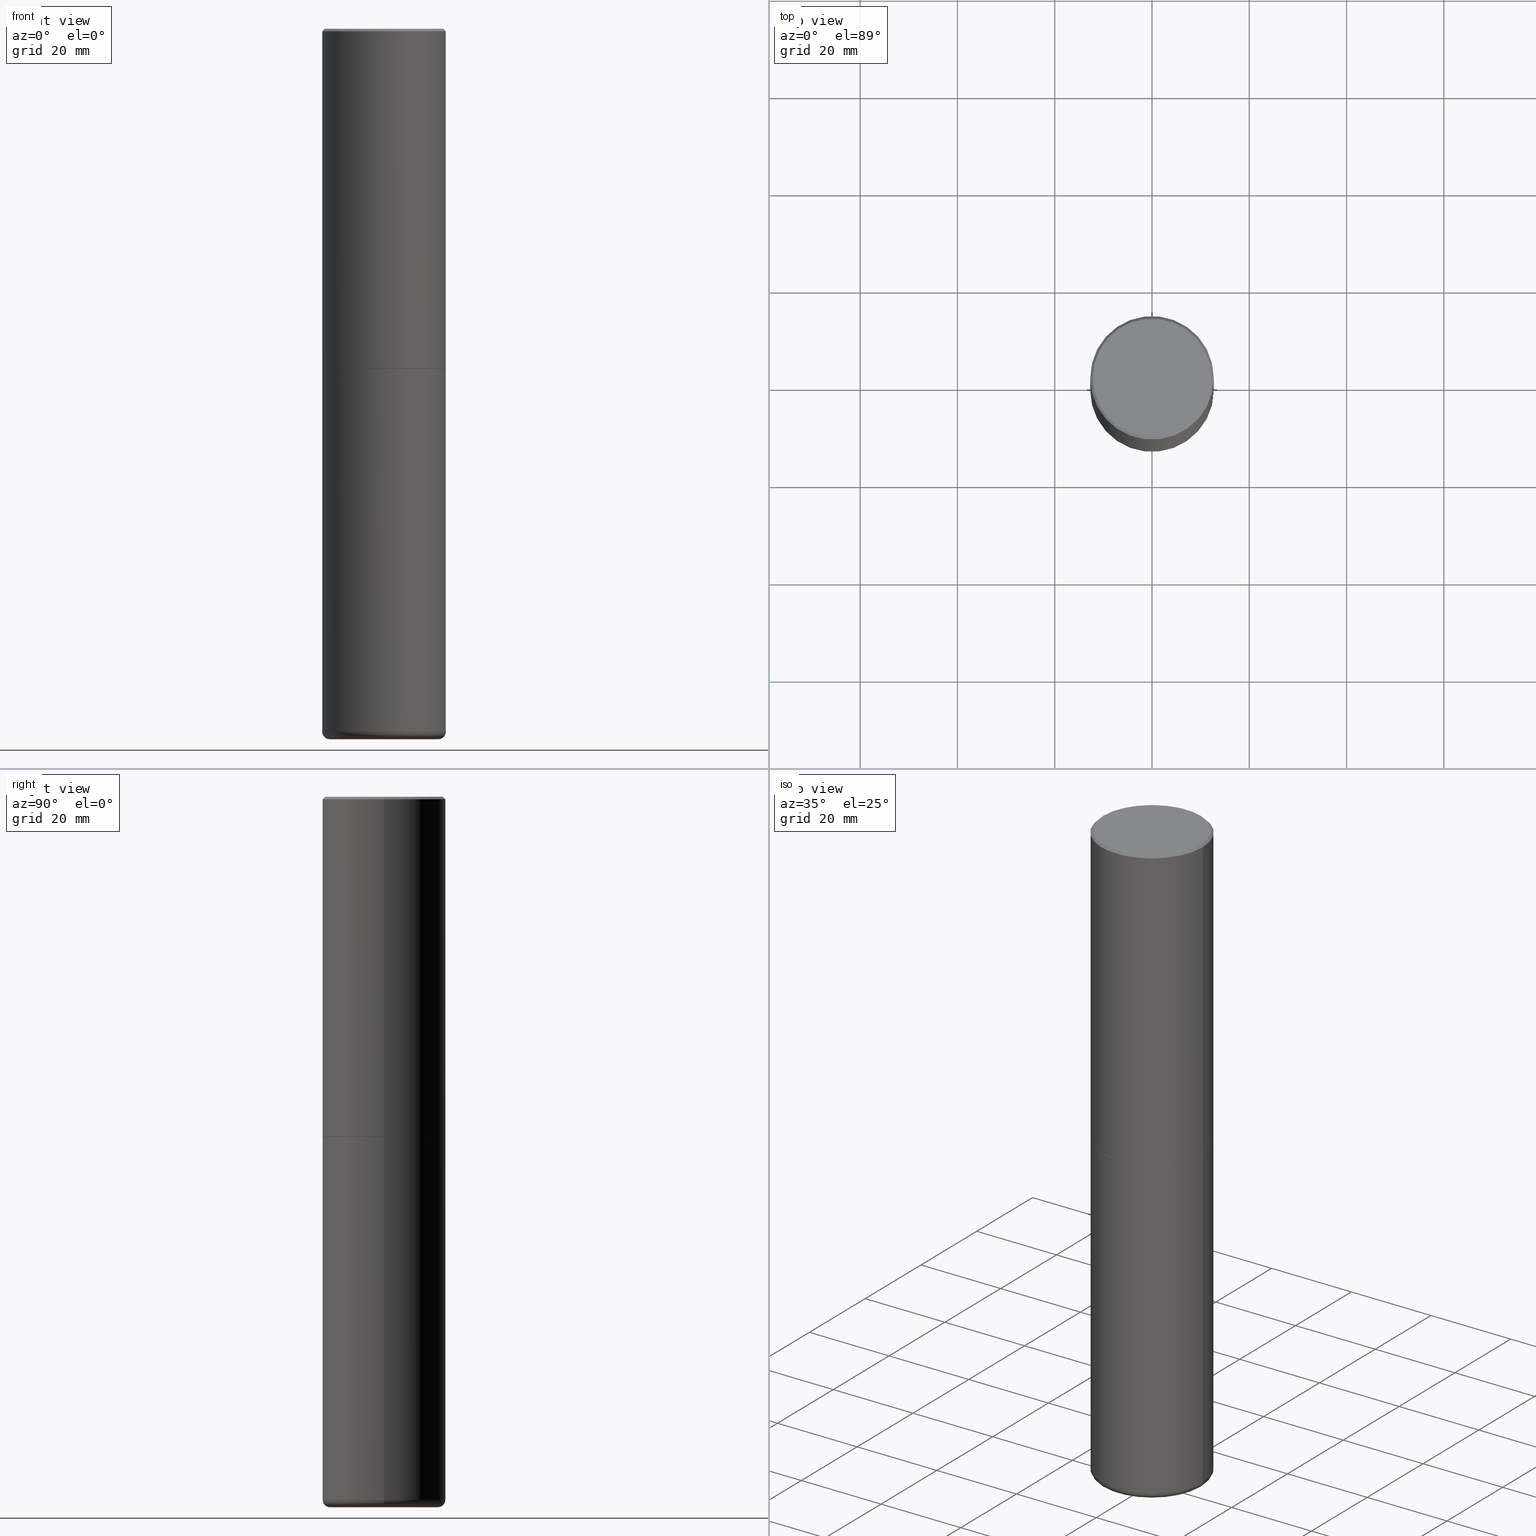
[diagram: canonical four-view strip — front | top / right | iso, engineering-drawing reading convention]
A machine part, canonical four-view strip (front | top / right | iso — engineering-drawing reading convention). The complete STEP part file that produces these views, byte-faithful:
ISO-10303-21;
HEADER;
FILE_DESCRIPTION (( 'STEP AP203' ),
    '1' );
FILE_NAME ('77487.STEP',
    '2024-05-02T19:49:01',
    ( '' ),
    ( '' ),
    'SwSTEP 2.0',
    'SolidWorks 2023',
    '' );
FILE_SCHEMA (( 'CONFIG_CONTROL_DESIGN' ));
ENDSEC;

DATA;
#1 = AXIS2_PLACEMENT_3D ( 'NONE', #299, #142, #88 ) ;
#2 = LINE ( 'NONE', #251, #170 ) ;
#3 = DIRECTION ( 'NONE',  ( -2.445468806185136597E-29, 3.491481338843145583E-15, 1.000000000000000000 ) ) ;
#4 = VERTEX_POINT ( 'NONE', #238 ) ;
#5 = PRODUCT_DEFINITION ( 'UNKNOWN', '', #105, #130 ) ;
#6 = ORIENTED_EDGE ( 'NONE', *, *, #245, .T. ) ;
#7 = CIRCLE ( 'NONE', #156, 0.4400000000000000022 ) ;
#8 = PLANE ( 'NONE',  #401 ) ;
#9 = AXIS2_PLACEMENT_3D ( 'NONE', #226, #133, #255 ) ;
#10 = APPROVAL_DATE_TIME ( #396, #98 ) ;
#11 = ORIENTED_EDGE ( 'NONE', *, *, #157, .T. ) ;
#12 = VERTEX_POINT ( 'NONE', #180 ) ;
#13 = PERSON_AND_ORGANIZATION ( #398, #27 ) ;
#14 = EDGE_CURVE ( 'NONE', #102, #51, #203, .T. ) ;
#15 = ORIENTED_EDGE ( 'NONE', *, *, #322, .F. ) ;
#16 = ADVANCED_FACE ( 'NONE', ( #87 ), #273, .T. ) ;
#17 = CC_DESIGN_PERSON_AND_ORGANIZATION_ASSIGNMENT ( #146, #113, ( #105 ) ) ;
#18 = DIRECTION ( 'NONE',  ( -1.000000000000000000, 6.982962677686266711E-15, 0.000000000000000000 ) ) ;
#19 = AXIS2_PLACEMENT_3D ( 'NONE', #212, #280, #405 ) ;
#20 = VECTOR ( 'NONE', #323, 39.37007874015748143 ) ;
#21 = CARTESIAN_POINT ( 'NONE',  ( 0.000000000000000000, 0.000000000000000000, 0.000000000000000000 ) ) ;
#22 = DIRECTION ( 'NONE',  ( -2.445468806185136597E-29, 3.491481338843145583E-15, 1.000000000000000000 ) ) ;
#23 = EDGE_CURVE ( 'NONE', #12, #89, #223, .T. ) ;
#24 = ORIENTED_EDGE ( 'NONE', *, *, #241, .F. ) ;
#25 = CARTESIAN_POINT ( 'NONE',  ( 4.890937612370299433E-31, -6.982962677686328587E-17, -0.02000000000000010797 ) ) ;
#26 = TOROIDAL_SURFACE ( 'NONE', #60, 0.4400000000000000022, 0.06000000000000045575 ) ;
#27 = ORGANIZATION ( 'UNSPECIFIED', 'UNSPECIFIED', '' ) ;
#28 = CARTESIAN_POINT ( 'NONE',  ( 2.609628535838049452E-45, -3.725857925951117973E-31, -1.067128122525102851E-16 ) ) ;
#29 = PRODUCT ( '77487', '77487', '', ( #207 ) ) ;
#30 = ORIENTED_EDGE ( 'NONE', *, *, #361, .T. ) ;
#31 = CARTESIAN_POINT ( 'NONE',  ( 4.890937612370299433E-31, -6.982962677686328587E-17, -0.02000000000000010797 ) ) ;
#32 = CARTESIAN_POINT ( 'NONE',  ( 0.4989999999999999991, -1.308607205798409720E-14, -2.749999999999999556 ) ) ;
#33 = AXIS2_PLACEMENT_3D ( 'NONE', #31, #159, #413 ) ;
#34 = ORIENTED_EDGE ( 'NONE', *, *, #368, .T. ) ;
#35 = LENGTH_MEASURE_WITH_UNIT ( LENGTH_MEASURE( 0.02539999999999999897 ), #390 );
#36 = DIRECTION ( 'NONE',  ( 2.438088387897960049E-29, -3.491481338843145188E-15, -1.000000000000000000 ) ) ;
#37 = ADVANCED_FACE ( 'NONE', ( #369 ), #169, .T. ) ;
#38 = CARTESIAN_POINT ( 'NONE',  ( 1.391471750719342616E-28, -1.986652881801749632E-14, -5.689999999999999503 ) ) ;
#39 = AXIS2_PLACEMENT_3D ( 'NONE', #235, #213, #380 ) ;
#40 = CC_DESIGN_APPROVAL ( #285, ( #105 ) ) ;
#41 = DIRECTION ( 'NONE',  ( -2.445468806185136877E-29, 3.491481338843145188E-15, 1.000000000000000000 ) ) ;
#42 = DIRECTION ( 'NONE',  ( 0.000000000000000000, 0.000000000000000000, 1.000000000000000000 ) ) ;
#43 = COORDINATED_UNIVERSAL_TIME_OFFSET ( 5, 0, .BEHIND. ) ;
#44 = DIRECTION ( 'NONE',  ( -2.445468806185136597E-29, 3.491481338843145583E-15, 1.000000000000000000 ) ) ;
#45 = VERTEX_POINT ( 'NONE', #145 ) ;
#46 = CARTESIAN_POINT ( 'NONE',  ( 0.000000000000000000, 0.000000000000000000, 0.000000000000000000 ) ) ;
#47 = AXIS2_PLACEMENT_3D ( 'NONE', #362, #81, #333 ) ;
#48 = LINE ( 'NONE', #397, #371 ) ;
#49 =( GEOMETRIC_REPRESENTATION_CONTEXT ( 3 ) GLOBAL_UNCERTAINTY_ASSIGNED_CONTEXT ( ( #124 ) ) GLOBAL_UNIT_ASSIGNED_CONTEXT ( ( #166, #292, #363 ) ) REPRESENTATION_CONTEXT ( 'NONE', 'WORKASPACE' ) );
#50 = CALENDAR_DATE ( 2024, 2, 5 ) ;
#51 = VERTEX_POINT ( 'NONE', #83 ) ;
#52 = APPROVAL_ROLE ( '' ) ;
#53 = CARTESIAN_POINT ( 'NONE',  ( 4.890937612370299433E-31, -6.982962677686328587E-17, -0.02000000000000010797 ) ) ;
#54 = DIRECTION ( 'NONE',  ( -0.7071067811867406405, 7.493145998871051513E-15, 0.7071067811863543939 ) ) ;
#55 = CARTESIAN_POINT ( 'NONE',  ( 0.000000000000000000, 0.000000000000000000, 0.000000000000000000 ) ) ;
#56 = ORIENTED_EDGE ( 'NONE', *, *, #356, .T. ) ;
#57 = ADVANCED_FACE ( 'NONE', ( #211 ), #8, .F. ) ;
#58 = DIRECTION ( 'NONE',  ( 1.000000000000000000, -6.982962677686269077E-15, 0.000000000000000000 ) ) ;
#59 = DIRECTION ( 'NONE',  ( -1.000000000000000000, 6.982962677686266711E-15, 0.000000000000000000 ) ) ;
#60 = AXIS2_PLACEMENT_3D ( 'NONE', #216, #22, #370 ) ;
#61 = AXIS2_PLACEMENT_3D ( 'NONE', #38, #72, #197 ) ;
#62 = CARTESIAN_POINT ( 'NONE',  ( 6.725039217009123399E-29, -9.601573681818648281E-15, -2.749999999999999556 ) ) ;
#63 = MANIFOLD_SOLID_BREP ( 'Body-Move/Copy2[2]', #193 ) ;
#64 = CARTESIAN_POINT ( 'NONE',  ( 4.890937612370299433E-31, -6.982962677686328587E-17, -0.02000000000000010797 ) ) ;
#65 = DIRECTION ( 'NONE',  ( 1.000000000000000000, -6.982962677686269077E-15, 0.000000000000000000 ) ) ;
#66 = EDGE_CURVE ( 'NONE', #336, #205, #175, .T. ) ;
#67 = CIRCLE ( 'NONE', #295, 0.4800000000000000933 ) ;
#68 = CIRCLE ( 'NONE', #121, 0.4989999999999999991 ) ;
#69 = DIRECTION ( 'NONE',  ( -1.000000000000000000, 6.982962677686265922E-15, -4.876176775795935793E-29 ) ) ;
#70 = CC_DESIGN_PERSON_AND_ORGANIZATION_ASSIGNMENT ( #13, #332, ( #105 ) ) ;
#71 = DIRECTION ( 'NONE',  ( 2.438088387897960049E-29, -3.491481338843145188E-15, -1.000000000000000000 ) ) ;
#72 = DIRECTION ( 'NONE',  ( -2.445468806185136597E-29, 3.491481338843145583E-15, 1.000000000000000000 ) ) ;
#73 = AXIS2_PLACEMENT_3D ( 'NONE', #383, #351, #195 ) ;
#74 = CALENDAR_DATE ( 2024, 2, 5 ) ;
#75 = EDGE_CURVE ( 'NONE', #316, #151, #48, .T. ) ;
#76 = APPROVAL_DATE_TIME ( #358, #334 ) ;
#77 = ORIENTED_EDGE ( 'NONE', *, *, #174, .F. ) ;
#78 = ORIENTED_EDGE ( 'NONE', *, *, #14, .F. ) ;
#79 = ORIENTED_EDGE ( 'NONE', *, *, #75, .T. ) ;
#80 = ORIENTED_EDGE ( 'NONE', *, *, #85, .T. ) ;
#81 = DIRECTION ( 'NONE',  ( 7.105427357601001859E-15, 1.000000000000000000, -3.491481338843145583E-15 ) ) ;
#82 = COORDINATED_UNIVERSAL_TIME_OFFSET ( 5, 0, .BEHIND. ) ;
#83 = CARTESIAN_POINT ( 'NONE',  ( 0.5000000000000000000, -3.500078625662629079E-15, -0.02000000000000010797 ) ) ;
#84 = APPROVAL_PERSON_ORGANIZATION ( #177, #285, #234 ) ;
#85 = EDGE_CURVE ( 'NONE', #200, #45, #378, .T. ) ;
#86 = CALENDAR_DATE ( 2024, 2, 5 ) ;
#87 = FACE_OUTER_BOUND ( 'NONE', #147, .T. ) ;
#88 = DIRECTION ( 'NONE',  ( 1.000000000000000000, -6.982962677686264344E-15, 4.883557194083111780E-29 ) ) ;
#89 = VERTEX_POINT ( 'NONE', #249 ) ;
#90 = ADVANCED_FACE ( 'NONE', ( #99 ), #385, .T. ) ;
#91 = FACE_OUTER_BOUND ( 'NONE', #172, .T. ) ;
#92 = AXIS2_PLACEMENT_3D ( 'NONE', #21, #150, #276 ) ;
#93 = CIRCLE ( 'NONE', #296, 0.06000000000000045575 ) ;
#94 = DIRECTION ( 'NONE',  ( -2.445468806185136877E-29, 3.491481338843145188E-15, 1.000000000000000000 ) ) ;
#95 = FACE_OUTER_BOUND ( 'NONE', #364, .T. ) ;
#96 = DIRECTION ( 'NONE',  ( -2.445468806185136597E-29, 3.491481338843145583E-15, 1.000000000000000000 ) ) ;
#97 = AXIS2_PLACEMENT_3D ( 'NONE', #64, #308, #59 ) ;
#98 = APPROVAL ( #148, 'UNSPECIFIED' ) ;
#99 = FACE_OUTER_BOUND ( 'NONE', #139, .T. ) ;
#100 = APPLICATION_CONTEXT ( 'configuration controlled 3d designs of mechanical parts and assemblies' ) ;
#101 = PLANE ( 'NONE',  #341 ) ;
#102 = VERTEX_POINT ( 'NONE', #345 ) ;
#103 = EDGE_CURVE ( 'NONE', #151, #102, #407, .T. ) ;
#104 = CARTESIAN_POINT ( 'NONE',  ( -0.5000000000000000000, 3.552713678800500929E-15, -2.459467545127452891E-29 ) ) ;
#105 = PRODUCT_DEFINITION_FORMATION_WITH_SPECIFIED_SOURCE ( 'ANY', '', #29, .NOT_KNOWN. ) ;
#106 = DIRECTION ( 'NONE',  ( 0.7071067811865461294, -7.319954787623251312E-15, -0.7071067811865489050 ) ) ;
#107 = FACE_OUTER_BOUND ( 'NONE', #217, .T. ) ;
#108 = PERSON_AND_ORGANIZATION_ROLE ( 'classification_officer' ) ;
#109 = ORIENTED_EDGE ( 'NONE', *, *, #368, .F. ) ;
#110 = PERSON_AND_ORGANIZATION ( #398, #27 ) ;
#111 = DIRECTION ( 'NONE',  ( -1.000000000000000000, 6.982962677686265922E-15, -4.876176775795935793E-29 ) ) ;
#112 = ORIENTED_EDGE ( 'NONE', *, *, #157, .F. ) ;
#113 = PERSON_AND_ORGANIZATION_ROLE ( 'design_supplier' ) ;
#114 = AXIS2_PLACEMENT_3D ( 'NONE', #373, #96, #315 ) ;
#115 = ORIENTED_EDGE ( 'NONE', *, *, #214, .T. ) ;
#116 = COORDINATED_UNIVERSAL_TIME_OFFSET ( 5, 0, .BEHIND. ) ;
#117 = ORIENTED_EDGE ( 'NONE', *, *, #241, .T. ) ;
#118 = CYLINDRICAL_SURFACE ( 'NONE', #140, 0.5000000000000001110 ) ;
#119 = DIRECTION ( 'NONE',  ( -2.438088387897960049E-29, 3.491481338843145188E-15, 1.000000000000000000 ) ) ;
#120 = VECTOR ( 'NONE', #400, 39.37007874015748143 ) ;
#121 = AXIS2_PLACEMENT_3D ( 'NONE', #386, #221, #282 ) ;
#122 = CARTESIAN_POINT ( 'NONE',  ( -0.5000000000000002220, -1.631381513921699223E-14, -5.689999999999999503 ) ) ;
#123 = DIRECTION ( 'NONE',  ( 1.000000000000000000, -6.982962677686267499E-15, 4.876176775795935793E-29 ) ) ;
#124 = UNCERTAINTY_MEASURE_WITH_UNIT (LENGTH_MEASURE( 1.000000000000000082E-05 ), #166, 'distance_accuracy_value', 'NONE');
#125 = FACE_OUTER_BOUND ( 'NONE', #160, .T. ) ;
#126 = VECTOR ( 'NONE', #41, 39.37007874015748143 ) ;
#127 = ORIENTED_EDGE ( 'NONE', *, *, #174, .T. ) ;
#128 = EDGE_LOOP ( 'NONE', ( #115, #161, #277, #165 ) ) ;
#129 = FACE_OUTER_BOUND ( 'NONE', #233, .T. ) ;
#130 = DESIGN_CONTEXT ( 'detailed design', #100, 'design' ) ;
#131 = ADVANCED_FACE ( 'NONE', ( #184 ), #414, .T. ) ;
#132 = DIRECTION ( 'NONE',  ( -0.7071067811865461294, 2.468850131082242072E-15, -0.7071067811865489050 ) ) ;
#133 = DIRECTION ( 'NONE',  ( -2.445468806185136597E-29, 3.491481338843145583E-15, 1.000000000000000000 ) ) ;
#134 = AXIS2_PLACEMENT_3D ( 'NONE', #348, #155, #153 ) ;
#135 = VECTOR ( 'NONE', #94, 39.37007874015748143 ) ;
#136 = FACE_OUTER_BOUND ( 'NONE', #182, .T. ) ;
#137 = CC_DESIGN_PERSON_AND_ORGANIZATION_ASSIGNMENT ( #173, #329, ( #5 ) ) ;
#138 = SECURITY_CLASSIFICATION_LEVEL ( 'unclassified' ) ;
#139 = EDGE_LOOP ( 'NONE', ( #179, #330, #395, #310 ) ) ;
#140 = AXIS2_PLACEMENT_3D ( 'NONE', #55, #240, #123 ) ;
#141 = COORDINATED_UNIVERSAL_TIME_OFFSET ( 5, 0, .BEHIND. ) ;
#142 = DIRECTION ( 'NONE',  ( -2.445468806185136597E-29, 3.491481338843145583E-15, 1.000000000000000000 ) ) ;
#143 = ADVANCED_FACE ( 'NONE', ( #95 ), #311, .F. ) ;
#144 = DIRECTION ( 'NONE',  ( 1.000000000000000000, 0.000000000000000000, 0.000000000000000000 ) ) ;
#145 = CARTESIAN_POINT ( 'NONE',  ( -0.4800000000000000933, 3.386736898677839197E-15, -1.067128122525338523E-16 ) ) ;
#146 = PERSON_AND_ORGANIZATION ( #398, #27 ) ;
#147 = EDGE_LOOP ( 'NONE', ( #391, #77, #149, #11 ) ) ;
#148 = APPROVAL_STATUS ( 'not_yet_approved' ) ;
#149 = ORIENTED_EDGE ( 'NONE', *, *, #291, .T. ) ;
#150 = DIRECTION ( 'NONE',  ( -2.445468806185136597E-29, 3.491481338843145583E-15, 1.000000000000000000 ) ) ;
#151 = VERTEX_POINT ( 'NONE', #186 ) ;
#152 = CC_DESIGN_DATE_AND_TIME_ASSIGNMENT ( #232, #302, ( #5 ) ) ;
#153 = DIRECTION ( 'NONE',  ( 1.000000000000000000, -6.982962677686265922E-15, 0.000000000000000000 ) ) ;
#154 = ORIENTED_EDGE ( 'NONE', *, *, #219, .T. ) ;
#155 = DIRECTION ( 'NONE',  ( -2.445468806185136597E-29, 3.491481338843145583E-15, 1.000000000000000000 ) ) ;
#156 = AXIS2_PLACEMENT_3D ( 'NONE', #244, #309, #247 ) ;
#157 = EDGE_CURVE ( 'NONE', #176, #51, #346, .T. ) ;
#158 = FACE_OUTER_BOUND ( 'NONE', #210, .T. ) ;
#159 = DIRECTION ( 'NONE',  ( -2.445468806185136597E-29, 3.491481338843145583E-15, 1.000000000000000000 ) ) ;
#160 = EDGE_LOOP ( 'NONE', ( #303, #388 ) ) ;
#161 = ORIENTED_EDGE ( 'NONE', *, *, #66, .T. ) ;
#162 = CARTESIAN_POINT ( 'NONE',  ( -0.4989999999999999991, -6.050666976027525169E-15, -2.749999999999999556 ) ) ;
#163 = LOCAL_TIME ( 15, 49, 1.000000000000000000, #141 ) ;
#164 = ADVANCED_FACE ( 'NONE', ( #91 ), #189, .T. ) ;
#165 = ORIENTED_EDGE ( 'NONE', *, *, #381, .F. ) ;
#166 =( CONVERSION_BASED_UNIT ( 'INCH', #35 ) LENGTH_UNIT ( ) NAMED_UNIT ( #319 ) );
#167 = CYLINDRICAL_SURFACE ( 'NONE', #387, 0.5000000000000000000 ) ;
#168 = DIRECTION ( 'NONE',  ( 0.7071067811867406405, -2.468850131084279700E-15, 0.7071067811863543939 ) ) ;
#169 = TOROIDAL_SURFACE ( 'NONE', #1, 0.4400000000000000022, 0.06000000000000045575 ) ;
#170 = VECTOR ( 'NONE', #168, 39.37007874015748143 ) ;
#171 = DIRECTION ( 'NONE',  ( 1.000000000000000000, -6.982962677686280121E-15, 0.000000000000000000 ) ) ;
#172 = EDGE_LOOP ( 'NONE', ( #301, #56, #34, #318 ) ) ;
#173 = PERSON_AND_ORGANIZATION ( #398, #27 ) ;
#174 = EDGE_CURVE ( 'NONE', #45, #200, #67, .T. ) ;
#175 = CIRCLE ( 'NONE', #47, 0.06000000000000045575 ) ;
#176 = VERTEX_POINT ( 'NONE', #411 ) ;
#177 = PERSON_AND_ORGANIZATION ( #398, #27 ) ;
#178 = ORIENTED_EDGE ( 'NONE', *, *, #381, .T. ) ;
#179 = ORIENTED_EDGE ( 'NONE', *, *, #75, .F. ) ;
#180 = CARTESIAN_POINT ( 'NONE',  ( -0.5000000000000000000, -1.118133757111757137E-14, -2.749999999999999556 ) ) ;
#181 = AXIS2_PLACEMENT_3D ( 'NONE', #46, #42, #144 ) ;
#182 = EDGE_LOOP ( 'NONE', ( #127, #80 ) ) ;
#183 = DIRECTION ( 'NONE',  ( 1.000000000000000000, -6.982962677686266711E-15, 0.000000000000000000 ) ) ;
#184 = FACE_OUTER_BOUND ( 'NONE', #185, .T. ) ;
#185 = EDGE_LOOP ( 'NONE', ( #208, #253, #6, #206 ) ) ;
#186 = CARTESIAN_POINT ( 'NONE',  ( -0.5000000000000003331, -1.281242234827828821E-15, -2.748999999999999666 ) ) ;
#187 = AXIS2_PLACEMENT_3D ( 'NONE', #62, #119, #376 ) ;
#188 = APPROVAL_PERSON_ORGANIZATION ( #228, #334, #52 ) ;
#189 = CYLINDRICAL_SURFACE ( 'NONE', #92, 0.5000000000000000000 ) ;
#190 = LINE ( 'NONE', #317, #321 ) ;
#191 = EDGE_CURVE ( 'NONE', #89, #12, #320, .T. ) ;
#192 = CARTESIAN_POINT ( 'NONE',  ( 0.4400000000000000022, -2.314852127653004609E-14, -5.750000000000000888 ) ) ;
#193 = CLOSED_SHELL ( 'NONE', ( #392, #201, #131, #16, #300, #90, #143, #349 ) ) ;
#194 = CARTESIAN_POINT ( 'NONE',  ( 0.000000000000000000, 0.000000000000000000, 0.000000000000000000 ) ) ;
#195 = DIRECTION ( 'NONE',  ( 1.000000000000000000, -6.982962677686265922E-15, 0.000000000000000000 ) ) ;
#196 = CC_DESIGN_PERSON_AND_ORGANIZATION_ASSIGNMENT ( #110, #108, ( #335 ) ) ;
#197 = DIRECTION ( 'NONE',  ( 1.000000000000000000, -6.982962677686263555E-15, 0.000000000000000000 ) ) ;
#198 = AXIS2_PLACEMENT_3D ( 'NONE', #194, #355, #417 ) ;
#199 = SHAPE_DEFINITION_REPRESENTATION ( #377, #268 ) ;
#200 = VERTEX_POINT ( 'NONE', #410 ) ;
#201 = ADVANCED_FACE ( 'NONE', ( #281 ), #118, .T. ) ;
#202 = DATE_AND_TIME ( #261, #163 ) ;
#203 = LINE ( 'NONE', #275, #120 ) ;
#204 = AXIS2_PLACEMENT_3D ( 'NONE', #342, #347, #246 ) ;
#205 = VERTEX_POINT ( 'NONE', #122 ) ;
#206 = ORIENTED_EDGE ( 'NONE', *, *, #291, .F. ) ;
#207 = MECHANICAL_CONTEXT ( 'NONE', #403, 'mechanical' ) ;
#208 = ORIENTED_EDGE ( 'NONE', *, *, #85, .F. ) ;
#209 = PERSON_AND_ORGANIZATION_ROLE ( 'design_owner' ) ;
#210 = EDGE_LOOP ( 'NONE', ( #297, #154, #178, #262 ) ) ;
#211 = FACE_OUTER_BOUND ( 'NONE', #306, .T. ) ;
#212 = CARTESIAN_POINT ( 'NONE',  ( 6.725039217009123399E-29, -9.601573681818648281E-15, -2.749999999999999556 ) ) ;
#213 = DIRECTION ( 'NONE',  ( -2.445468806185136597E-29, 3.491481338843145583E-15, 1.000000000000000000 ) ) ;
#214 = EDGE_CURVE ( 'NONE', #404, #336, #7, .T. ) ;
#215 = DIRECTION ( 'NONE',  ( -2.445468806185136597E-29, 3.491481338843145583E-15, 1.000000000000000000 ) ) ;
#216 = CARTESIAN_POINT ( 'NONE',  ( 1.391471750719342616E-28, -1.986652881801749632E-14, -5.689999999999999503 ) ) ;
#217 = EDGE_LOOP ( 'NONE', ( #367, #294, #394, #109 ) ) ;
#218 = ORIENTED_EDGE ( 'NONE', *, *, #339, .T. ) ;
#219 = EDGE_CURVE ( 'NONE', #336, #404, #236, .T. ) ;
#220 = DIRECTION ( 'NONE',  ( -2.445468806185136597E-29, 3.491481338843145583E-15, 1.000000000000000000 ) ) ;
#221 = DIRECTION ( 'NONE',  ( -2.445468806185136597E-29, 3.491481338843145583E-15, 1.000000000000000000 ) ) ;
#222 = CARTESIAN_POINT ( 'NONE',  ( -0.4400000000000000022, -1.663172240011032058E-14, -5.750000000000000888 ) ) ;
#223 = CIRCLE ( 'NONE', #242, 0.5000000000000000000 ) ;
#224 = DIRECTION ( 'NONE',  ( 1.000000000000000000, -6.982962677686266711E-15, 4.876176775795935793E-29 ) ) ;
#225 = ADVANCED_FACE ( 'NONE', ( #158 ), #26, .T. ) ;
#226 = CARTESIAN_POINT ( 'NONE',  ( 6.725039217009123399E-29, -9.601573681818648281E-15, -2.749999999999999556 ) ) ;
#227 = CLOSED_SHELL ( 'NONE', ( #354, #37, #57, #164, #225, #260 ) ) ;
#228 = PERSON_AND_ORGANIZATION ( #398, #27 ) ;
#229 = EDGE_CURVE ( 'NONE', #4, #205, #288, .T. ) ;
#230 = EDGE_LOOP ( 'NONE', ( #218, #117, #248, #78 ) ) ;
#231 = ORIENTED_EDGE ( 'NONE', *, *, #103, .T. ) ;
#232 = DATE_AND_TIME ( #50, #257 ) ;
#233 = EDGE_LOOP ( 'NONE', ( #24, #231, #382, #112 ) ) ;
#234 = APPROVAL_ROLE ( '' ) ;
#235 = CARTESIAN_POINT ( 'NONE',  ( 2.609628535838049452E-45, -3.725857925951117973E-31, -1.067128122525102851E-16 ) ) ;
#236 = CIRCLE ( 'NONE', #204, 0.4400000000000000022 ) ;
#237 = LOCAL_TIME ( 15, 49, 1.000000000000000000, #366 ) ;
#238 = CARTESIAN_POINT ( 'NONE',  ( 0.5000000000000002220, -2.335801015686062967E-14, -5.689999999999999503 ) ) ;
#239 = DIRECTION ( 'NONE',  ( 1.000000000000000000, -6.982962677686266711E-15, 0.000000000000000000 ) ) ;
#240 = DIRECTION ( 'NONE',  ( -2.445468806185136597E-29, 3.491481338843145583E-15, 1.000000000000000000 ) ) ;
#241 = EDGE_CURVE ( 'NONE', #151, #176, #278, .T. ) ;
#242 = AXIS2_PLACEMENT_3D ( 'NONE', #270, #44, #239 ) ;
#243 = CC_DESIGN_APPROVAL ( #98, ( #5 ) ) ;
#244 = CARTESIAN_POINT ( 'NONE',  ( 1.406144563556453767E-28, -2.007601769834809252E-14, -5.750000000000000888 ) ) ;
#245 = EDGE_CURVE ( 'NONE', #51, #176, #379, .T. ) ;
#246 = DIRECTION ( 'NONE',  ( 1.000000000000000000, -6.982962677686262766E-15, 0.000000000000000000 ) ) ;
#247 = DIRECTION ( 'NONE',  ( 1.000000000000000000, -6.982962677686262766E-15, 0.000000000000000000 ) ) ;
#248 = ORIENTED_EDGE ( 'NONE', *, *, #245, .F. ) ;
#249 = CARTESIAN_POINT ( 'NONE',  ( 0.5000000000000000000, -1.309305502066178164E-14, -2.749999999999999556 ) ) ;
#250 = CIRCLE ( 'NONE', #73, 0.5000000000000003331 ) ;
#251 = CARTESIAN_POINT ( 'NONE',  ( 0.4989999999999999991, -1.308607205798409720E-14, -2.749999999999999556 ) ) ;
#252 = LINE ( 'NONE', #286, #264 ) ;
#253 = ORIENTED_EDGE ( 'NONE', *, *, #327, .T. ) ;
#254 = PRODUCT_RELATED_PRODUCT_CATEGORY ( 'detail', '', ( #29 ) ) ;
#255 = DIRECTION ( 'NONE',  ( 1.000000000000000000, -6.982962677686269077E-15, 0.000000000000000000 ) ) ;
#256 = AXIS2_PLACEMENT_3D ( 'NONE', #53, #305, #18 ) ;
#257 = LOCAL_TIME ( 15, 49, 1.000000000000000000, #116 ) ;
#258 = CARTESIAN_POINT ( 'NONE',  ( 0.4400000000000000022, -2.293903239619945620E-14, -5.689999999999999503 ) ) ;
#259 = CARTESIAN_POINT ( 'NONE',  ( 6.725039217009123399E-29, -9.601573681818648281E-15, -2.749999999999999556 ) ) ;
#260 = ADVANCED_FACE ( 'NONE', ( #125 ), #416, .T. ) ;
#261 = CALENDAR_DATE ( 2024, 2, 5 ) ;
#262 = ORIENTED_EDGE ( 'NONE', *, *, #356, .F. ) ;
#263 = AXIS2_PLACEMENT_3D ( 'NONE', #25, #313, #183 ) ;
#264 = VECTOR ( 'NONE', #106, 39.37007874015748143 ) ;
#265 = PERSON_AND_ORGANIZATION ( #398, #27 ) ;
#266 = DIRECTION ( 'NONE',  ( 2.438088387897960049E-29, -3.491481338843145188E-15, -1.000000000000000000 ) ) ;
#267 = EDGE_LOOP ( 'NONE', ( #30, #79, #293, #15 ) ) ;
#268 = ADVANCED_BREP_SHAPE_REPRESENTATION ( '77487', ( #344, #63, #181 ), #49 ) ;
#269 = APPROVAL_ROLE ( '' ) ;
#270 = CARTESIAN_POINT ( 'NONE',  ( 6.725039217009123399E-29, -9.601573681818648281E-15, -2.749999999999999556 ) ) ;
#271 = APPROVAL_DATE_TIME ( #202, #285 ) ;
#272 = ORIENTED_EDGE ( 'NONE', *, *, #361, .F. ) ;
#273 = CONICAL_SURFACE ( 'NONE', #256, 0.5000000000000000000, 0.7853981633974463916 ) ;
#274 = CALENDAR_DATE ( 2024, 2, 5 ) ;
#275 = CARTESIAN_POINT ( 'NONE',  ( 0.5000000000000001110, -3.491481338843134539E-15, 2.438088387897968457E-29 ) ) ;
#276 = DIRECTION ( 'NONE',  ( 1.000000000000000000, -6.982962677686266711E-15, 4.876176775795935793E-29 ) ) ;
#277 = ORIENTED_EDGE ( 'NONE', *, *, #229, .F. ) ;
#278 = LINE ( 'NONE', #406, #135 ) ;
#279 = LOCAL_TIME ( 15, 49, 1.000000000000000000, #82 ) ;
#280 = DIRECTION ( 'NONE',  ( -2.445468806185136597E-29, 3.491481338843145583E-15, 1.000000000000000000 ) ) ;
#281 = FACE_OUTER_BOUND ( 'NONE', #230, .T. ) ;
#282 = DIRECTION ( 'NONE',  ( 1.000000000000000000, -6.982962677686269077E-15, 0.000000000000000000 ) ) ;
#283 = ORIENTED_EDGE ( 'NONE', *, *, #23, .T. ) ;
#284 = CARTESIAN_POINT ( 'NONE',  ( 0.5000000000000000000, -3.491481338843133355E-15, 2.438088387897967896E-29 ) ) ;
#285 = APPROVAL ( #328, 'UNSPECIFIED' ) ;
#286 = CARTESIAN_POINT ( 'NONE',  ( 0.5000000000000000000, -3.500078625662629079E-15, -0.02000000000000010797 ) ) ;
#287 = DIRECTION ( 'NONE',  ( -1.000000000000000000, 6.982962677686265922E-15, -4.876176775795935793E-29 ) ) ;
#288 = CIRCLE ( 'NONE', #114, 0.4999999999999999445 ) ;
#289 = CC_DESIGN_SECURITY_CLASSIFICATION ( #335, ( #105 ) ) ;
#290 = FACE_OUTER_BOUND ( 'NONE', #267, .T. ) ;
#291 = EDGE_CURVE ( 'NONE', #45, #176, #190, .T. ) ;
#292 =( NAMED_UNIT ( * ) PLANE_ANGLE_UNIT ( ) SI_UNIT ( $, .RADIAN. ) );
#293 = ORIENTED_EDGE ( 'NONE', *, *, #339, .F. ) ;
#294 = ORIENTED_EDGE ( 'NONE', *, *, #331, .T. ) ;
#295 = AXIS2_PLACEMENT_3D ( 'NONE', #28, #215, #374 ) ;
#296 = AXIS2_PLACEMENT_3D ( 'NONE', #258, #350, #171 ) ;
#297 = ORIENTED_EDGE ( 'NONE', *, *, #66, .F. ) ;
#298 = APPROVAL_STATUS ( 'not_yet_approved' ) ;
#299 = CARTESIAN_POINT ( 'NONE',  ( 1.391471750719342616E-28, -1.986652881801749632E-14, -5.689999999999999503 ) ) ;
#300 = ADVANCED_FACE ( 'NONE', ( #129 ), #384, .T. ) ;
#301 = ORIENTED_EDGE ( 'NONE', *, *, #331, .F. ) ;
#302 = DATE_TIME_ROLE ( 'creation_date' ) ;
#303 = ORIENTED_EDGE ( 'NONE', *, *, #214, .F. ) ;
#304 = PERSON_AND_ORGANIZATION ( #398, #27 ) ;
#305 = DIRECTION ( 'NONE',  ( 2.445468806185136597E-29, -3.491481338843145583E-15, -1.000000000000000000 ) ) ;
#306 = EDGE_LOOP ( 'NONE', ( #338, #283 ) ) ;
#307 = CIRCLE ( 'NONE', #9, 0.4989999999999999991 ) ;
#308 = DIRECTION ( 'NONE',  ( 2.445468806185136597E-29, -3.491481338843145583E-15, -1.000000000000000000 ) ) ;
#309 = DIRECTION ( 'NONE',  ( -2.445468806185136597E-29, 3.491481338843145583E-15, 1.000000000000000000 ) ) ;
#310 = ORIENTED_EDGE ( 'NONE', *, *, #103, .F. ) ;
#311 = PLANE ( 'NONE',  #187 ) ;
#312 = CC_DESIGN_APPROVAL ( #334, ( #335 ) ) ;
#313 = DIRECTION ( 'NONE',  ( -2.445468806185136597E-29, 3.491481338843145583E-15, 1.000000000000000000 ) ) ;
#314 = CC_DESIGN_PERSON_AND_ORGANIZATION_ASSIGNMENT ( #265, #209, ( #29 ) ) ;
#315 = DIRECTION ( 'NONE',  ( 1.000000000000000000, -6.982962677686263555E-15, 0.000000000000000000 ) ) ;
#316 = VERTEX_POINT ( 'NONE', #162 ) ;
#317 = CARTESIAN_POINT ( 'NONE',  ( -0.5000000000000000000, 3.421651712066270057E-15, -0.02000000000000010797 ) ) ;
#318 = ORIENTED_EDGE ( 'NONE', *, *, #23, .F. ) ;
#319 = DIMENSIONAL_EXPONENTS ( 1.000000000000000000, 0.000000000000000000, 0.000000000000000000, 0.000000000000000000, 0.000000000000000000, 0.000000000000000000, 0.000000000000000000 ) ;
#320 = CIRCLE ( 'NONE', #19, 0.5000000000000000000 ) ;
#321 = VECTOR ( 'NONE', #132, 39.37007874015748143 ) ;
#322 = EDGE_CURVE ( 'NONE', #359, #102, #2, .T. ) ;
#323 = DIRECTION ( 'NONE',  ( -2.445468806185136877E-29, 3.491481338843145188E-15, 1.000000000000000000 ) ) ;
#324 = CARTESIAN_POINT ( 'NONE',  ( 3.351822085289408337E-15, 0.4800000000000000933, -1.729267448770965221E-15 ) ) ;
#325 = LINE ( 'NONE', #284, #126 ) ;
#326 = AXIS2_PLACEMENT_3D ( 'NONE', #343, #220, #58 ) ;
#327 = EDGE_CURVE ( 'NONE', #200, #51, #252, .T. ) ;
#328 = APPROVAL_STATUS ( 'not_yet_approved' ) ;
#329 = PERSON_AND_ORGANIZATION_ROLE ( 'creator' ) ;
#330 = ORIENTED_EDGE ( 'NONE', *, *, #375, .T. ) ;
#331 = EDGE_CURVE ( 'NONE', #205, #12, #389, .T. ) ;
#332 = PERSON_AND_ORGANIZATION_ROLE ( 'creator' ) ;
#333 = DIRECTION ( 'NONE',  ( -1.000000000000000000, 7.105427357601001859E-15, 0.000000000000000000 ) ) ;
#334 = APPROVAL ( #298, 'UNSPECIFIED' ) ;
#335 = SECURITY_CLASSIFICATION ( '', '', #138 ) ;
#336 = VERTEX_POINT ( 'NONE', #222 ) ;
#337 = DATE_TIME_ROLE ( 'classification_date' ) ;
#338 = ORIENTED_EDGE ( 'NONE', *, *, #191, .T. ) ;
#339 = EDGE_CURVE ( 'NONE', #102, #151, #250, .T. ) ;
#340 = CARTESIAN_POINT ( 'NONE',  ( 6.725039217009123399E-29, -9.601573681818648281E-15, -2.749999999999999556 ) ) ;
#341 = AXIS2_PLACEMENT_3D ( 'NONE', #324, #36, #69 ) ;
#342 = CARTESIAN_POINT ( 'NONE',  ( 1.406144563556453767E-28, -2.007601769834809252E-14, -5.750000000000000888 ) ) ;
#343 = CARTESIAN_POINT ( 'NONE',  ( 6.725039217009123399E-29, -9.601573681818648281E-15, -2.749999999999999556 ) ) ;
#344 = MANIFOLD_SOLID_BREP ( 'Body-Move/Copy2[1]', #227 ) ;
#345 = CARTESIAN_POINT ( 'NONE',  ( 0.5000000000000003331, -1.308956353932294179E-14, -2.748999999999999666 ) ) ;
#346 = CIRCLE ( 'NONE', #263, 0.5000000000000000000 ) ;
#347 = DIRECTION ( 'NONE',  ( -2.445468806185136597E-29, 3.491481338843145583E-15, 1.000000000000000000 ) ) ;
#348 = CARTESIAN_POINT ( 'NONE',  ( 6.722593748202938917E-29, -9.598082200479805274E-15, -2.748999999999999666 ) ) ;
#349 = ADVANCED_FACE ( 'NONE', ( #136 ), #101, .F. ) ;
#350 = DIRECTION ( 'NONE',  ( -6.982962677686266711E-15, -1.000000000000000000, 3.491481338843145583E-15 ) ) ;
#351 = DIRECTION ( 'NONE',  ( -2.445468806185136597E-29, 3.491481338843145583E-15, 1.000000000000000000 ) ) ;
#352 = APPROVAL_PERSON_ORGANIZATION ( #304, #98, #269 ) ;
#353 = CARTESIAN_POINT ( 'NONE',  ( 4.089694968291764333E-29, -3.435613221068401065E-14, -5.750000000000000888 ) ) ;
#354 = ADVANCED_FACE ( 'NONE', ( #107 ), #167, .T. ) ;
#355 = DIRECTION ( 'NONE',  ( -2.445468806185136597E-29, 3.491481338843145583E-15, 1.000000000000000000 ) ) ;
#356 = EDGE_CURVE ( 'NONE', #205, #4, #365, .T. ) ;
#357 = CARTESIAN_POINT ( 'NONE',  ( 0.000000000000000000, 0.000000000000000000, 0.000000000000000000 ) ) ;
#358 = DATE_AND_TIME ( #74, #415 ) ;
#359 = VERTEX_POINT ( 'NONE', #32 ) ;
#360 = DATE_AND_TIME ( #86, #237 ) ;
#361 = EDGE_CURVE ( 'NONE', #359, #316, #307, .T. ) ;
#362 = CARTESIAN_POINT ( 'NONE',  ( -0.4400000000000000022, -1.674014078067305588E-14, -5.689999999999999503 ) ) ;
#363 =( NAMED_UNIT ( * ) SI_UNIT ( $, .STERADIAN. ) SOLID_ANGLE_UNIT ( ) );
#364 = EDGE_LOOP ( 'NONE', ( #272, #412 ) ) ;
#365 = CIRCLE ( 'NONE', #61, 0.4999999999999999445 ) ;
#366 = COORDINATED_UNIVERSAL_TIME_OFFSET ( 5, 0, .BEHIND. ) ;
#367 = ORIENTED_EDGE ( 'NONE', *, *, #229, .T. ) ;
#368 = EDGE_CURVE ( 'NONE', #4, #89, #325, .T. ) ;
#369 = FACE_OUTER_BOUND ( 'NONE', #128, .T. ) ;
#370 = DIRECTION ( 'NONE',  ( 1.000000000000000000, -6.982962677686264344E-15, 4.883557194083111780E-29 ) ) ;
#371 = VECTOR ( 'NONE', #54, 39.37007874015748143 ) ;
#372 = AXIS2_PLACEMENT_3D ( 'NONE', #259, #3, #65 ) ;
#373 = CARTESIAN_POINT ( 'NONE',  ( 1.391471750719342616E-28, -1.986652881801749632E-14, -5.689999999999999503 ) ) ;
#374 = DIRECTION ( 'NONE',  ( 1.000000000000000000, -6.982962677686266711E-15, 4.874852205035275907E-29 ) ) ;
#375 = EDGE_CURVE ( 'NONE', #316, #359, #68, .T. ) ;
#376 = DIRECTION ( 'NONE',  ( 1.000000000000000000, -6.982962677686265922E-15, 4.876176775795935793E-29 ) ) ;
#377 = PRODUCT_DEFINITION_SHAPE ( 'NONE', 'NONE',  #5 ) ;
#378 = CIRCLE ( 'NONE', #39, 0.4800000000000000933 ) ;
#379 = CIRCLE ( 'NONE', #33, 0.5000000000000000000 ) ;
#380 = DIRECTION ( 'NONE',  ( 1.000000000000000000, -6.982962677686266711E-15, 4.874852205035275907E-29 ) ) ;
#381 = EDGE_CURVE ( 'NONE', #404, #4, #93, .T. ) ;
#382 = ORIENTED_EDGE ( 'NONE', *, *, #14, .T. ) ;
#383 = CARTESIAN_POINT ( 'NONE',  ( 6.722593748202938917E-29, -9.598082200479805274E-15, -2.748999999999999666 ) ) ;
#384 = CYLINDRICAL_SURFACE ( 'NONE', #198, 0.5000000000000001110 ) ;
#385 = CONICAL_SURFACE ( 'NONE', #326, 0.4989999999999999991, 0.7853981633977213939 ) ;
#386 = CARTESIAN_POINT ( 'NONE',  ( 6.725039217009123399E-29, -9.601573681818648281E-15, -2.749999999999999556 ) ) ;
#387 = AXIS2_PLACEMENT_3D ( 'NONE', #357, #418, #224 ) ;
#388 = ORIENTED_EDGE ( 'NONE', *, *, #219, .F. ) ;
#389 = LINE ( 'NONE', #104, #20 ) ;
#390 =( LENGTH_UNIT ( ) NAMED_UNIT ( * ) SI_UNIT ( $, .METRE. ) );
#391 = ORIENTED_EDGE ( 'NONE', *, *, #327, .F. ) ;
#392 = ADVANCED_FACE ( 'NONE', ( #290 ), #402, .T. ) ;
#393 = APPLICATION_PROTOCOL_DEFINITION ( 'international standard', 'config_control_design', 1994, #403 ) ;
#394 = ORIENTED_EDGE ( 'NONE', *, *, #191, .F. ) ;
#395 = ORIENTED_EDGE ( 'NONE', *, *, #322, .T. ) ;
#396 = DATE_AND_TIME ( #274, #279 ) ;
#397 = CARTESIAN_POINT ( 'NONE',  ( -0.4989999999999999991, -6.055965430375748360E-15, -2.749999999999999556 ) ) ;
#398 = PERSON ( 'UNSPECIFIED', 'UNSPECIFIED', 'UNSPECIFIED', ('UNSPECIFIED'), ('UNSPECIFIED'), ('UNSPECIFIED') ) ;
#399 = APPLICATION_PROTOCOL_DEFINITION ( 'international standard', 'config_control_design', 1994, #100 ) ;
#400 = DIRECTION ( 'NONE',  ( -2.445468806185136877E-29, 3.491481338843145188E-15, 1.000000000000000000 ) ) ;
#401 = AXIS2_PLACEMENT_3D ( 'NONE', #340, #266, #111 ) ;
#402 = CONICAL_SURFACE ( 'NONE', #372, 0.4989999999999999991, 0.7853981633977213939 ) ;
#403 = APPLICATION_CONTEXT ( 'configuration controlled 3d designs of mechanical parts and assemblies' ) ;
#404 = VERTEX_POINT ( 'NONE', #192 ) ;
#405 = DIRECTION ( 'NONE',  ( 1.000000000000000000, -6.982962677686266711E-15, 0.000000000000000000 ) ) ;
#406 = CARTESIAN_POINT ( 'NONE',  ( -0.5000000000000001110, 3.552713678800501718E-15, -2.459467545127453732E-29 ) ) ;
#407 = CIRCLE ( 'NONE', #134, 0.5000000000000003331 ) ;
#408 = AXIS2_PLACEMENT_3D ( 'NONE', #353, #71, #287 ) ;
#409 = CC_DESIGN_DATE_AND_TIME_ASSIGNMENT ( #360, #337, ( #335 ) ) ;
#410 = CARTESIAN_POINT ( 'NONE',  ( 0.4800000000000000933, -3.396558832296482493E-15, -1.067128122524866809E-16 ) ) ;
#411 = CARTESIAN_POINT ( 'NONE',  ( -0.5000000000000000000, 3.421651712066270057E-15, -0.02000000000000010797 ) ) ;
#412 = ORIENTED_EDGE ( 'NONE', *, *, #375, .F. ) ;
#413 = DIRECTION ( 'NONE',  ( 1.000000000000000000, -6.982962677686266711E-15, 0.000000000000000000 ) ) ;
#414 = CONICAL_SURFACE ( 'NONE', #97, 0.5000000000000000000, 0.7853981633974463916 ) ;
#415 = LOCAL_TIME ( 15, 49, 1.000000000000000000, #43 ) ;
#416 = PLANE ( 'NONE',  #408 ) ;
#417 = DIRECTION ( 'NONE',  ( 1.000000000000000000, -6.982962677686267499E-15, 4.876176775795935793E-29 ) ) ;
#418 = DIRECTION ( 'NONE',  ( -2.445468806185136597E-29, 3.491481338843145583E-15, 1.000000000000000000 ) ) ;
ENDSEC;
END-ISO-10303-21;
